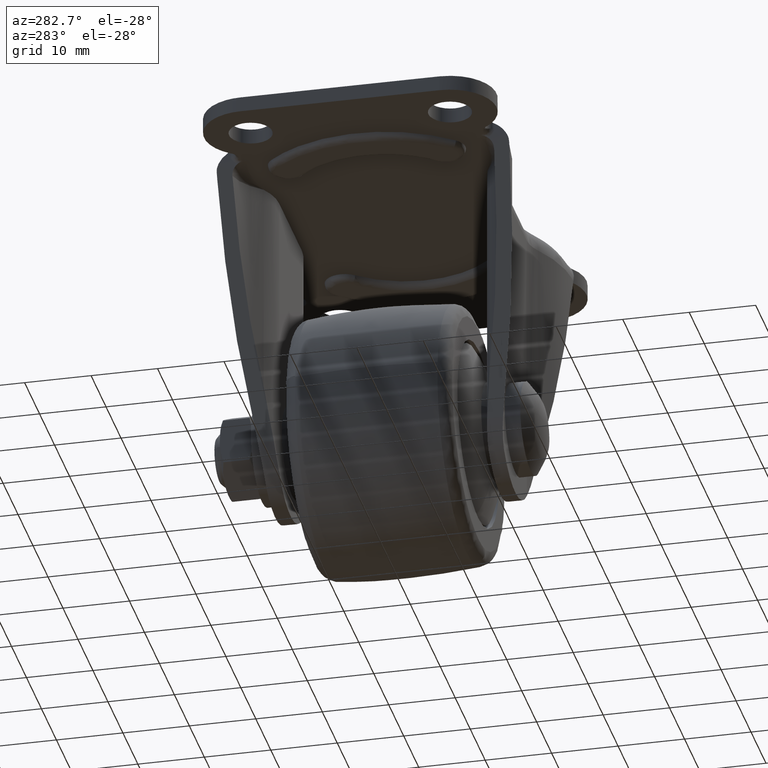
[diagram: clean part render]
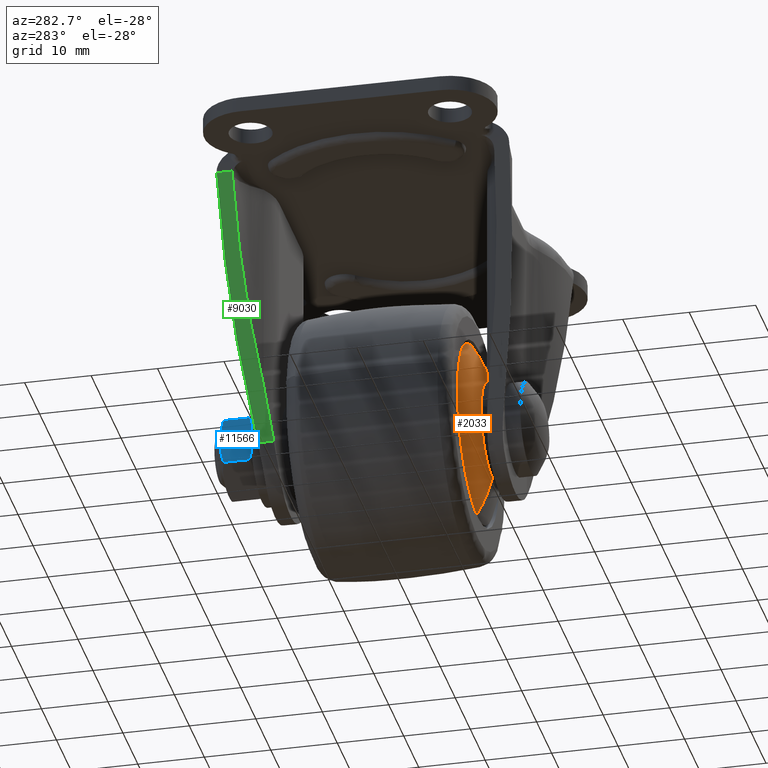
[diagram: same view with three faces highlighted in distinct colors, each labeled with its STEP entity id]
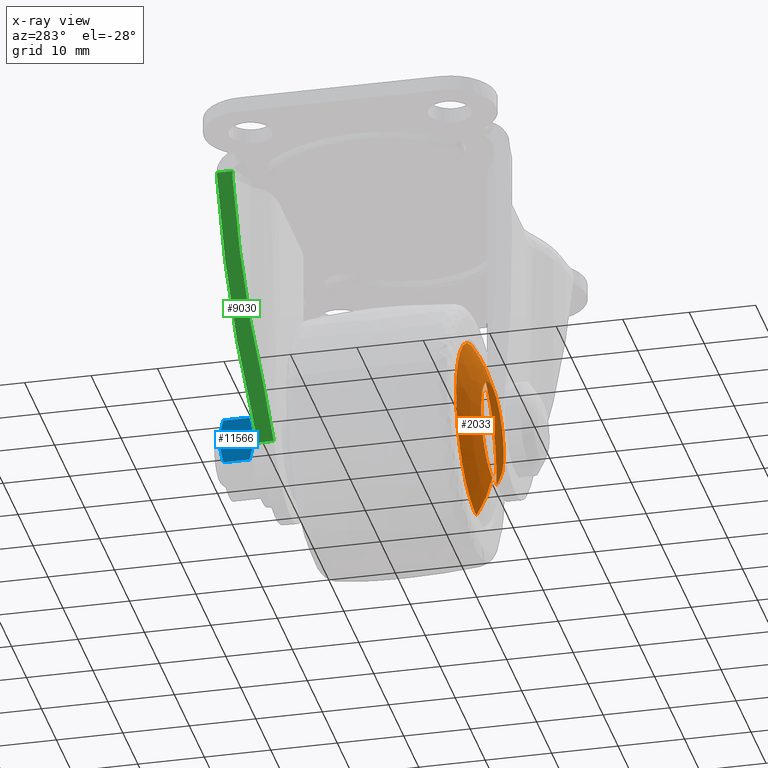
[diagram: x-ray of the same camera — body ghosted, the three highlighted faces saturated]
A machine part, auxiliary view with three faces highlighted in distinct colors.
The next image is the same camera in x-ray (body ghosted, the three faces saturated) — at least one of them is partly hidden behind the body in this view.
Their STEP definitions:

[orange] entity #2033 — the highlighted face is a freeform B-spline surface patch.
#696=CARTESIAN_POINT('',(-13.474820915861351,-12.182771163744279,-39.175864850305047));
#697=VERTEX_POINT('',#696);
#703=CARTESIAN_POINT('',(0.0,-12.182773047141520,-26.500000000000000));
#704=VERTEX_POINT('',#703);
#705=CARTESIAN_POINT('',(0.0,-12.182773047141520,-26.500000000000000));
#706=CARTESIAN_POINT('',(-12.699548009420326,-12.182773047141520,-26.500000000000004));
#707=CARTESIAN_POINT('',(-13.474820915861349,-12.182771163744279,-39.175864850305047));
#715=(BOUNDED_CURVE()B_SPLINE_CURVE(2,(#705,#706,#707),.UNSPECIFIED.,.F.,.U.)B_SPLINE_CURVE_WITH_KNOTS((3,3),(0.500000000000000,0.739333180666354),.UNSPECIFIED.)CURVE()GEOMETRIC_REPRESENTATION_ITEM()RATIONAL_B_SPLINE_CURVE((1.0,0.719603737383080,0.976072509798687))REPRESENTATION_ITEM(''));
#716=EDGE_CURVE('',#704,#697,#715,.T.);
#718=CARTESIAN_POINT('',(13.409675991670900,-12.182793590311441,-41.558743749918747));
#719=VERTEX_POINT('',#718);
#720=CARTESIAN_POINT('',(13.409675991670893,-12.182793590311446,-41.558743749918762));
#721=CARTESIAN_POINT('',(13.499967466808068,-12.182793060483601,-40.781985080643679));
#722=CARTESIAN_POINT('',(13.499968433996999,-12.182792465501009,-39.999996330760709));
#723=CARTESIAN_POINT('',(13.499985131230453,-12.182782193916047,-26.499998271650885));
#724=CARTESIAN_POINT('',(0.0,-12.182773047141520,-26.500000000000000));
#732=(BOUNDED_CURVE()B_SPLINE_CURVE(2,(#720,#721,#722,#723,#724),.UNSPECIFIED.,.F.,.U.)B_SPLINE_CURVE_WITH_KNOTS((3,2,3),(0.230000245529099,0.250000000000000,0.500000000000000),.UNSPECIFIED.)CURVE()GEOMETRIC_REPRESENTATION_ITEM()RATIONAL_B_SPLINE_CURVE((0.956886601452015,0.976568830150156,1.0,0.707106781186548,1.0))REPRESENTATION_ITEM(''));
#733=EDGE_CURVE('',#719,#704,#732,.T.);
#735=CARTESIAN_POINT('',(0.0,-12.182769035444821,-53.500006565186517));
#736=VERTEX_POINT('',#735);
#750=CARTESIAN_POINT('',(-4.746832036288619,-12.182769163538589,-52.637945479409240));
#751=VERTEX_POINT('',#750);
#752=CARTESIAN_POINT('',(-4.746832036288619,-12.182769163538596,-52.637945479409254));
#753=CARTESIAN_POINT('',(-2.451693907825490,-12.182769035448827,-53.500005172733715));
#754=CARTESIAN_POINT('',(0.0,-12.182769035444821,-53.500006565186517));
#762=(BOUNDED_CURVE()B_SPLINE_CURVE(2,(#752,#753,#754),.UNSPECIFIED.,.F.,.U.)B_SPLINE_CURVE_WITH_KNOTS((3,3),(0.940284290530248,1.0),.UNSPECIFIED.)CURVE()GEOMETRIC_REPRESENTATION_ITEM()RATIONAL_B_SPLINE_CURVE((0.893499701036261,0.930038694558702,1.0))REPRESENTATION_ITEM(''));
#763=EDGE_CURVE('',#751,#736,#762,.T.);
#807=CARTESIAN_POINT('',(-13.474820915861349,-12.182771163744279,-39.175864850305047));
#808=CARTESIAN_POINT('',(-13.500000070321578,-12.182771102575826,-39.587549367262376));
#809=CARTESIAN_POINT('',(-13.500000045732660,-12.182771041293060,-40.000003159436758));
#810=CARTESIAN_POINT('',(-13.499999488307314,-12.182769652026264,-49.350241180772038));
#811=CARTESIAN_POINT('',(-4.746832036288619,-12.182769163538596,-52.637945479409254));
#819=(BOUNDED_CURVE()B_SPLINE_CURVE(2,(#807,#808,#809,#810,#811),.UNSPECIFIED.,.F.,.U.)B_SPLINE_CURVE_WITH_KNOTS((3,2,3),(0.739333180666354,0.750000000000000,0.940284290530248),.UNSPECIFIED.)CURVE()GEOMETRIC_REPRESENTATION_ITEM()RATIONAL_B_SPLINE_CURVE((0.976072509798687,0.987503043803468,1.0,0.777068086627846,0.893499701036261))REPRESENTATION_ITEM(''));
#820=EDGE_CURVE('',#697,#751,#819,.T.);
#840=CARTESIAN_POINT('',(-7.485935557275999,-14.618241047723730,-39.410844094238200));
#841=VERTEX_POINT('',#840);
#842=CARTESIAN_POINT('',(-2.762609031767161,-14.618241961957260,-46.982427914256448));
#843=VERTEX_POINT('',#842);
#844=CARTESIAN_POINT('',(-7.485935557275999,-14.618241047723734,-39.410844094238193));
#845=CARTESIAN_POINT('',(-7.509083458400205,-14.618241076282951,-39.704966576889916));
#846=CARTESIAN_POINT('',(-7.509083470475787,-14.618241105712009,-39.999998541450672));
#847=CARTESIAN_POINT('',(-7.509083679400792,-14.618241614877201,-45.104478166267398));
#848=CARTESIAN_POINT('',(-2.762609031767160,-14.618241961957267,-46.982427914256448));
#856=(BOUNDED_CURVE()B_SPLINE_CURVE(2,(#844,#845,#846,#847,#848),.UNSPECIFIED.,.F.,.U.)B_SPLINE_CURVE_WITH_KNOTS((3,2,3),(0.736331332318104,0.750000000000000,0.937532572423875),.UNSPECIFIED.)CURVE()GEOMETRIC_REPRESENTATION_ITEM()RATIONAL_B_SPLINE_CURVE((0.969723422296706,0.983986159703032,1.0,0.780291924921617,0.890203213857211))REPRESENTATION_ITEM(''));
#857=EDGE_CURVE('',#841,#843,#856,.T.);
#917=CARTESIAN_POINT('',(0.0,-14.618241481884580,-47.509080533641637));
#918=VERTEX_POINT('',#917);
#919=CARTESIAN_POINT('',(-2.762609031767160,-14.618241961957267,-46.982427914256448));
#920=CARTESIAN_POINT('',(-1.431504160055830,-14.618241733979769,-47.509080939676132));
#921=CARTESIAN_POINT('',(0.0,-14.618241481884580,-47.509080533641637));
#929=(BOUNDED_CURVE()B_SPLINE_CURVE(2,(#919,#920,#921),.UNSPECIFIED.,.F.,.U.)B_SPLINE_CURVE_WITH_KNOTS((3,3),(0.937532572423875,1.0),.UNSPECIFIED.)CURVE()GEOMETRIC_REPRESENTATION_ITEM()RATIONAL_B_SPLINE_CURVE((0.890203213857211,0.926814856264931,1.0))REPRESENTATION_ITEM(''));
#930=EDGE_CURVE('',#843,#918,#929,.T.);
#932=CARTESIAN_POINT('',(7.458860093009480,-14.618240794113630,-40.867030546176750));
#933=VERTEX_POINT('',#932);
#947=CARTESIAN_POINT('',(0.0,-14.618240794139419,-32.490916443840163));
#948=VERTEX_POINT('',#947);
#949=CARTESIAN_POINT('',(7.458860093009480,-14.618240794113630,-40.867030546176750));
#950=CARTESIAN_POINT('',(7.509083556159850,-14.618240794139416,-40.434969891158879));
#951=CARTESIAN_POINT('',(7.509083556159850,-14.618240794139419,-40.0));
#952=CARTESIAN_POINT('',(7.509083556159848,-14.618240794139426,-32.490916443840149));
#953=CARTESIAN_POINT('',(0.0,-14.618240794139419,-32.490916443840163));
#961=(BOUNDED_CURVE()B_SPLINE_CURVE(2,(#949,#950,#951,#952,#953),.UNSPECIFIED.,.F.,.U.)B_SPLINE_CURVE_WITH_KNOTS((3,2,3),(0.229999999981900,0.250000000000000,0.500000000000000),.UNSPECIFIED.)CURVE()GEOMETRIC_REPRESENTATION_ITEM()RATIONAL_B_SPLINE_CURVE((0.956886118155034,0.976568542473718,1.0,0.707106781186548,1.0))REPRESENTATION_ITEM(''));
#962=EDGE_CURVE('',#933,#948,#961,.T.);
#964=CARTESIAN_POINT('',(0.0,-14.618240794139419,-32.490916443840163));
#965=CARTESIAN_POINT('',(-6.941326727352064,-14.618240794139426,-32.490916443840156));
#966=CARTESIAN_POINT('',(-7.485935557275999,-14.618241047723727,-39.410844094238200));
#974=(BOUNDED_CURVE()B_SPLINE_CURVE(2,(#964,#965,#966),.UNSPECIFIED.,.F.,.U.)B_SPLINE_CURVE_WITH_KNOTS((3,3),(0.500000000000000,0.736331332318103),.UNSPECIFIED.)CURVE()GEOMETRIC_REPRESENTATION_ITEM()RATIONAL_B_SPLINE_CURVE((1.0,0.723120621483517,0.969723422296704))REPRESENTATION_ITEM(''));
#975=EDGE_CURVE('',#948,#841,#974,.T.);
#1962=CARTESIAN_POINT('',(7.146563714614486,-14.687123446489121,-40.830728506506148));
#1963=CARTESIAN_POINT('',(10.654441419993942,-13.943125665402611,-41.238490071863318));
#1964=CARTESIAN_POINT('',(13.682769570056870,-12.011721982796681,-41.590507995689819));
#1965=CARTESIAN_POINT('',(7.194684341829480,-14.687123446489128,-40.416757966569421));
#1966=CARTESIAN_POINT('',(10.726181968910771,-13.943125665402610,-40.621322850875785));
#1967=CARTESIAN_POINT('',(13.774901044712715,-12.011721982796667,-40.797922393302628));
#1968=CARTESIAN_POINT('',(7.194684341829480,-14.687123446489117,-40.0));
#1969=CARTESIAN_POINT('',(10.726181968910771,-13.943125665402617,-40.000000000000007));
#1970=CARTESIAN_POINT('',(13.774901044712715,-12.011721982796674,-40.0));
#1971=CARTESIAN_POINT('',(7.194684341829492,-14.687123446489121,-32.805315658170528));
#1972=CARTESIAN_POINT('',(10.726181968910780,-13.943125665402611,-29.273818031089238));
#1973=CARTESIAN_POINT('',(13.774901044712715,-12.011721982796669,-26.225098955287301));
#1974=CARTESIAN_POINT('',(0.0,-14.687123446489117,-32.805315658170521));
#1975=CARTESIAN_POINT('',(0.0,-13.943125665402617,-29.273818031089231));
#1976=CARTESIAN_POINT('',(0.0,-12.011721982796674,-26.225098955287283));
#1977=CARTESIAN_POINT('',(-7.194684341829481,-14.687123446489121,-32.805315658170528));
#1978=CARTESIAN_POINT('',(-10.726181968910772,-13.943125665402611,-29.273818031089238));
#1979=CARTESIAN_POINT('',(-13.774901044712712,-12.011721982796669,-26.225098955287301));
#1980=CARTESIAN_POINT('',(-7.194684341829480,-14.687123446489117,-40.0));
#1981=CARTESIAN_POINT('',(-10.726181968910771,-13.943125665402617,-40.000000000000007));
#1982=CARTESIAN_POINT('',(-13.774901044712715,-12.011721982796674,-40.0));
#1983=CARTESIAN_POINT('',(-7.194684341829492,-14.687123446489121,-47.194684341829493));
#1984=CARTESIAN_POINT('',(-10.726181968910780,-13.943125665402611,-50.726181968910780));
#1985=CARTESIAN_POINT('',(-13.774901044712715,-12.011721982796669,-53.774901044712706));
#1986=CARTESIAN_POINT('',(0.0,-14.687123446489117,-47.194684341829479));
#1987=CARTESIAN_POINT('',(0.0,-13.943125665402617,-50.726181968910765));
#1988=CARTESIAN_POINT('',(0.0,-12.011721982796674,-53.774901044712720));
#1996=(BOUNDED_SURFACE()B_SPLINE_SURFACE(2,2,((#1962,#1965,#1968,#1971,#1974,#1977,#1980,#1983,#1986),(#1963,#1966,#1969,#1972,#1975,#1978,#1981,#1984,#1987),(#1964,#1967,#1970,#1973,#1976,#1979,#1982,#1985,#1988)),.UNSPECIFIED.,.F.,.F.,.U.)B_SPLINE_SURFACE_WITH_KNOTS((3,3),(3,2,2,2,3),(0.0,7.160196184574903),(0.0,1.825839885681582,24.648843217950880,47.471846550220171,70.294849882489473),.UNSPECIFIED.)GEOMETRIC_REPRESENTATION_ITEM()RATIONAL_B_SPLINE_SURFACE(((0.890021714400608,0.908328785201493,0.930122916241287,0.657696221411221,0.930122916241287,0.657696221411221,0.930122916241287,0.657696221411221,0.930122916241287),(0.873164444060380,0.891124773611434,0.912506117465451,0.645239263534028,0.912506117465451,0.645239263534028,0.912506117465451,0.645239263534028,0.912506117465451),(0.884520371814718,0.902714284176218,0.924373702793527,0.653630913595821,0.924373702793527,0.653630913595821,0.924373702793527,0.653630913595821,0.924373702793527)))REPRESENTATION_ITEM('')SURFACE());
#1997=ORIENTED_EDGE('',*,*,#733,.T.);
#1998=ORIENTED_EDGE('',*,*,#716,.T.);
#1999=ORIENTED_EDGE('',*,*,#820,.T.);
#2000=ORIENTED_EDGE('',*,*,#763,.T.);
#2001=CARTESIAN_POINT('',(0.0,-14.618241481884585,-47.509080533641630));
#2002=CARTESIAN_POINT('',(0.0,-13.891256796567301,-50.704047239213679));
#2003=CARTESIAN_POINT('',(0.0,-12.182769035444823,-53.500006565186524));
#2011=(BOUNDED_CURVE()B_SPLINE_CURVE(2,(#2001,#2002,#2003),.UNSPECIFIED.,.F.,.U.)B_SPLINE_CURVE_WITH_KNOTS((3,3),(0.110946488871639,0.202706852760419),.UNSPECIFIED.)CURVE()GEOMETRIC_REPRESENTATION_ITEM()RATIONAL_B_SPLINE_CURVE((0.928583646167967,0.913784296243747,0.923356615400687))REPRESENTATION_ITEM(''));
#2012=EDGE_CURVE('',#918,#736,#2011,.T.);
#2013=ORIENTED_EDGE('',*,*,#2012,.F.);
#2014=ORIENTED_EDGE('',*,*,#930,.F.);
#2015=ORIENTED_EDGE('',*,*,#857,.F.);
#2016=ORIENTED_EDGE('',*,*,#975,.F.);
#2017=ORIENTED_EDGE('',*,*,#962,.F.);
#2018=CARTESIAN_POINT('',(7.458860093009480,-14.618240794113625,-40.867030546176750));
#2019=CARTESIAN_POINT('',(10.632433766906734,-13.891261331126861,-41.235922267916180));
#2020=CARTESIAN_POINT('',(13.409675991670891,-12.182793590311441,-41.558743749918754));
#2028=(BOUNDED_CURVE()B_SPLINE_CURVE(2,(#2018,#2019,#2020),.UNSPECIFIED.,.F.,.U.)B_SPLINE_CURVE_WITH_KNOTS((3,3),(0.110946532981696,0.202706186447544),.UNSPECIFIED.)CURVE()GEOMETRIC_REPRESENTATION_ITEM()RATIONAL_B_SPLINE_CURVE((0.888548786982071,0.874387615330748,0.883546994393507))REPRESENTATION_ITEM(''));
#2029=EDGE_CURVE('',#933,#719,#2028,.T.);
#2030=ORIENTED_EDGE('',*,*,#2029,.T.);
#2031=EDGE_LOOP('',(#1997,#1998,#1999,#2000,#2013,#2014,#2015,#2016,#2017,#2030));
#2032=FACE_OUTER_BOUND('',#2031,.T.);
#2033=ADVANCED_FACE('',(#2032),#1996,.T.);

[blue] entity #11566 — the highlighted face is a freeform B-spline surface patch.
#11079=CARTESIAN_POINT('',(-6.000000000000110,24.514101755950449,-36.535897999999897));
#11080=VERTEX_POINT('',#11079);
#11081=CARTESIAN_POINT('',(-6.000000000000110,25.050000000000001,-40.0));
#11082=VERTEX_POINT('',#11081);
#11083=CARTESIAN_POINT('',(-6.000000000000110,24.514101755950449,-36.535897999999897));
#11084=CARTESIAN_POINT('',(-6.000000000000112,24.675771102702289,-37.095937261797268));
#11085=CARTESIAN_POINT('',(-6.000000000000112,24.810347986418019,-37.663130441609923));
#11086=CARTESIAN_POINT('',(-6.000000000000111,24.951149997300480,-38.530044324757043));
#11087=CARTESIAN_POINT('',(-6.000000000000108,24.987853493681580,-38.821717042409702));
#11088=CARTESIAN_POINT('',(-6.000000000000111,25.025046730624929,-39.263942682974857));
#11089=CARTESIAN_POINT('',(-6.000000000000112,25.034400434183269,-39.411386436511400));
#11090=CARTESIAN_POINT('',(-6.000000000000110,25.046862420935330,-39.705470259671117));
#11091=CARTESIAN_POINT('',(-6.000000000000109,25.049982518698009,-39.852249000437411));
#11092=CARTESIAN_POINT('',(-6.000000000000109,25.049999975549849,-39.999176845019932));
#11093=CARTESIAN_POINT('',(-6.000000000000109,25.049999999879638,-39.999588423389163));
#11094=CARTESIAN_POINT('',(-6.000000000000110,25.050000000000001,-40.0));
#11095=B_SPLINE_CURVE_WITH_KNOTS('',3,(#11083,#11084,#11085,#11086,#11087,#11088,#11089,#11090,#11091,#11092,#11093,#11094),.UNSPECIFIED.,.F.,.U.,(4,2,2,2,2,4),(0.499824430563090,0.749824430563098,0.874824430563101,0.937324430563101,0.999824430563101,1.0),.UNSPECIFIED.);
#11096=EDGE_CURVE('',#11080,#11082,#11095,.T.);
#11325=CARTESIAN_POINT('',(-6.000000000000110,24.514101755950449,-43.464101999999997));
#11326=VERTEX_POINT('',#11325);
#11340=CARTESIAN_POINT('',(-6.000000000000110,25.050000000000001,-40.0));
#11341=CARTESIAN_POINT('',(-6.000000000000111,25.049999829340209,-40.292617992135121));
#11342=CARTESIAN_POINT('',(-6.000000000000111,25.037580440226229,-40.584185362104648));
#11343=CARTESIAN_POINT('',(-6.000000000000108,24.989141510498300,-41.165735188751263));
#11344=CARTESIAN_POINT('',(-6.000000000000110,24.953106715078029,-41.455716354925471));
#11345=CARTESIAN_POINT('',(-6.000000000000112,24.859896164030840,-42.033890236490421));
#11346=CARTESIAN_POINT('',(-6.000000000000110,24.802740688216229,-42.322084667481853));
#11347=CARTESIAN_POINT('',(-6.000000000000112,24.703462752031619,-42.753230478147778));
#11348=CARTESIAN_POINT('',(-6.000000000000110,24.668151841028600,-42.896572927524453));
#11349=CARTESIAN_POINT('',(-6.000000000000110,24.593846458290880,-43.181406625303232));
#11350=CARTESIAN_POINT('',(-6.000000000000112,24.554810396634721,-43.323083077515953));
#11351=CARTESIAN_POINT('',(-6.000000000000110,24.514101755950321,-43.464101999999947));
#11352=B_SPLINE_CURVE_WITH_KNOTS('',3,(#11340,#11341,#11342,#11343,#11344,#11345,#11346,#11347,#11348,#11349,#11350,#11351),.UNSPECIFIED.,.F.,.U.,(4,2,2,2,2,4),(0.0,0.124824430519084,0.249824430519080,0.374824430519077,0.437324430519077,0.499824430519076),.UNSPECIFIED.);
#11353=EDGE_CURVE('',#11082,#11326,#11352,.T.);
#11472=CARTESIAN_POINT('',(-6.000000000000110,20.585898244049851,-36.535897999999897));
#11473=VERTEX_POINT('',#11472);
#11474=CARTESIAN_POINT('',(-6.000000000000110,24.514101755950449,-36.535897999999897));
#11475=CARTESIAN_POINT('',(-6.000000000000110,20.585898244049851,-36.535897999999897));
#11476=QUASI_UNIFORM_CURVE('',1,(#11474,#11475),.UNSPECIFIED.,.F.,.U.);
#11477=EDGE_CURVE('',#11080,#11473,#11476,.T.);
#11517=CARTESIAN_POINT('',(-6.000000000000110,19.800249247498812,-43.810167671665660));
#11518=CARTESIAN_POINT('',(-6.000000000000110,19.800249247498812,-36.189832390277232));
#11519=CARTESIAN_POINT('',(-6.000000000000110,25.299749411396679,-43.810167671665660));
#11520=CARTESIAN_POINT('',(-6.000000000000110,25.299749411396679,-36.189832390277232));
#11521=B_SPLINE_SURFACE_WITH_KNOTS('',1,1,((#11517,#11519),(#11518,#11520)),.UNSPECIFIED.,.F.,.F.,.U.,(2,2),(2,2),(0.0,7.620335281388436),(0.0,5.499500163897874),.UNSPECIFIED.);
#11522=ORIENTED_EDGE('',*,*,#11096,.T.);
#11523=ORIENTED_EDGE('',*,*,#11353,.T.);
#11524=CARTESIAN_POINT('',(-6.000000000000110,20.585898244049851,-43.464101999999997));
#11525=VERTEX_POINT('',#11524);
#11526=CARTESIAN_POINT('',(-6.000000000000110,24.514101755950449,-43.464101999999997));
#11527=CARTESIAN_POINT('',(-6.000000000000110,20.585898244049851,-43.464101999999997));
#11528=QUASI_UNIFORM_CURVE('',1,(#11526,#11527),.UNSPECIFIED.,.F.,.U.);
#11529=EDGE_CURVE('',#11326,#11525,#11528,.T.);
#11530=ORIENTED_EDGE('',*,*,#11529,.T.);
#11531=CARTESIAN_POINT('',(-6.000000000000110,20.050000000000001,-40.0));
#11532=VERTEX_POINT('',#11531);
#11533=CARTESIAN_POINT('',(-6.000000000000110,20.585898244049812,-43.464102000000011));
#11534=CARTESIAN_POINT('',(-6.000000000000113,20.545189603365429,-43.323083077516003));
#11535=CARTESIAN_POINT('',(-6.000000000000110,20.506153541709249,-43.181406625303303));
#11536=CARTESIAN_POINT('',(-6.000000000000108,20.431848158971540,-42.896572927524502));
#11537=CARTESIAN_POINT('',(-6.000000000000111,20.396537247968531,-42.753230478147771));
#11538=CARTESIAN_POINT('',(-6.000000000000111,20.297259311783911,-42.322084667481860));
#11539=CARTESIAN_POINT('',(-6.000000000000109,20.240103835969322,-42.033890236490429));
#11540=CARTESIAN_POINT('',(-6.000000000000110,20.146893284922140,-41.455716354925478));
#11541=CARTESIAN_POINT('',(-6.000000000000109,20.110858489501879,-41.165735188751270));
#11542=CARTESIAN_POINT('',(-6.000000000000110,20.062419559773939,-40.584185362104641));
#11543=CARTESIAN_POINT('',(-6.000000000000112,20.050000170659970,-40.292617992135142));
#11544=CARTESIAN_POINT('',(-6.000000000000110,20.050000000000001,-40.0));
#11545=B_SPLINE_CURVE_WITH_KNOTS('',3,(#11533,#11534,#11535,#11536,#11537,#11538,#11539,#11540,#11541,#11542,#11543,#11544),.UNSPECIFIED.,.F.,.U.,(4,2,2,2,2,4),(0.0,0.062500000000000,0.125000000000001,0.249999999999999,0.374999999999997,0.499824430519084),.UNSPECIFIED.);
#11546=EDGE_CURVE('',#11525,#11532,#11545,.T.);
#11547=ORIENTED_EDGE('',*,*,#11546,.T.);
#11548=CARTESIAN_POINT('',(-6.000000000000110,20.050000000000001,-40.0));
#11549=CARTESIAN_POINT('',(-6.000000000000113,20.050000000120541,-39.999588423389170));
#11550=CARTESIAN_POINT('',(-6.000000000000113,20.050000024450330,-39.999176845019953));
#11551=CARTESIAN_POINT('',(-6.000000000000112,20.050017481302159,-39.852249000437432));
#11552=CARTESIAN_POINT('',(-6.000000000000111,20.053137579064838,-39.705470259671152));
#11553=CARTESIAN_POINT('',(-6.000000000000109,20.065599565816921,-39.411386436511407));
#11554=CARTESIAN_POINT('',(-6.000000000000109,20.074953269375250,-39.263942682974807));
#11555=CARTESIAN_POINT('',(-6.000000000000111,20.112146506318592,-38.821717042409652));
#11556=CARTESIAN_POINT('',(-6.000000000000110,20.148850002699700,-38.530044324756993));
#11557=CARTESIAN_POINT('',(-6.000000000000111,20.289652013582149,-37.663130441609859));
#11558=CARTESIAN_POINT('',(-6.000000000000112,20.424228897297859,-37.095937261797211));
#11559=CARTESIAN_POINT('',(-6.000000000000110,20.585898244049851,-36.535897999999897));
#11560=B_SPLINE_CURVE_WITH_KNOTS('',3,(#11548,#11549,#11550,#11551,#11552,#11553,#11554,#11555,#11556,#11557,#11558,#11559),.UNSPECIFIED.,.F.,.U.,(4,2,2,2,2,4),(0.499824430563098,0.499999999999996,0.562499999999995,0.624999999999994,0.749999999999995,1.0),.UNSPECIFIED.);
#11561=EDGE_CURVE('',#11532,#11473,#11560,.T.);
#11562=ORIENTED_EDGE('',*,*,#11561,.T.);
#11563=ORIENTED_EDGE('',*,*,#11477,.F.);
#11564=EDGE_LOOP('',(#11522,#11523,#11530,#11547,#11562,#11563));
#11565=FACE_OUTER_BOUND('',#11564,.T.);
#11566=ADVANCED_FACE('',(#11565),#11521,.T.);

[green] entity #9030 — the highlighted face is a freeform B-spline surface patch.
#5505=CARTESIAN_POINT('',(-21.346260549676401,21.989972251940149,-4.499999999999945));
#5506=VERTEX_POINT('',#5505);
#5520=CARTESIAN_POINT('',(-21.585738425470250,21.995973323452802,-3.694095333916275));
#5521=VERTEX_POINT('',#5520);
#5522=CARTESIAN_POINT('',(-21.585738425470250,21.995973323452802,-3.694095333916275));
#5523=CARTESIAN_POINT('',(-21.465982627636777,21.993645597845976,-4.097104404982003));
#5524=CARTESIAN_POINT('',(-21.346260549676401,21.989972251940149,-4.499999999999945));
#5532=(BOUNDED_CURVE()B_SPLINE_CURVE(2,(#5522,#5523,#5524),.UNSPECIFIED.,.F.,.U.)CURVE()GEOMETRIC_REPRESENTATION_ITEM()QUASI_UNIFORM_CURVE()RATIONAL_B_SPLINE_CURVE((1.0,0.999984213937059,1.0))REPRESENTATION_ITEM(''));
#5533=EDGE_CURVE('',#5521,#5506,#5532,.T.);
#7083=CARTESIAN_POINT('',(-21.379621236370749,19.689877085946801,-4.387732706073065));
#7084=VERTEX_POINT('',#7083);
#7085=CARTESIAN_POINT('',(-21.585738425470200,19.563380423333051,-3.694095333916265));
#7086=VERTEX_POINT('',#7085);
#7087=CARTESIAN_POINT('',(-21.379621236370749,19.689877085946801,-4.387732706073065));
#7088=CARTESIAN_POINT('',(-21.484811704320411,19.693190260867709,-4.033739717505080));
#7089=CARTESIAN_POINT('',(-21.585738425470200,19.563380423333051,-3.694095333916265));
#7090=QUASI_UNIFORM_CURVE('',2,(#7087,#7088,#7089),.UNSPECIFIED.,.F.,.U.);
#7091=EDGE_CURVE('',#7084,#7086,#7090,.T.);
#7252=CARTESIAN_POINT('',(-21.585738425470200,19.563380423333051,-3.694095333916265));
#7253=CARTESIAN_POINT('',(-21.585738425470250,21.995973323452802,-3.694095333916275));
#7254=QUASI_UNIFORM_CURVE('',1,(#7252,#7253),.UNSPECIFIED.,.F.,.U.);
#7255=EDGE_CURVE('',#7086,#5521,#7254,.T.);
#8886=CARTESIAN_POINT('',(-9.921239270361500,16.047196307249148,-42.948136090164454));
#8887=VERTEX_POINT('',#8886);
#8903=CARTESIAN_POINT('',(-9.921239270361500,18.451545292020700,-42.948136090164454));
#8904=VERTEX_POINT('',#8903);
#8905=CARTESIAN_POINT('',(-9.921239270361500,18.451545292020700,-42.948136090164454));
#8906=CARTESIAN_POINT('',(-9.921239270361500,16.047196307249148,-42.948136090164454));
#8907=QUASI_UNIFORM_CURVE('',1,(#8905,#8906),.UNSPECIFIED.,.F.,.U.);
#8908=EDGE_CURVE('',#8904,#8887,#8907,.T.);
#8963=CARTESIAN_POINT('',(-9.338597669669849,15.750053957491000,-44.908874981368257));
#8964=CARTESIAN_POINT('',(-22.168380443316838,15.750053957491000,-1.733355038878573));
#8965=CARTESIAN_POINT('',(-9.338597669669849,22.293114928603991,-44.908874981368257));
#8966=CARTESIAN_POINT('',(-22.168380443316838,22.293114928603991,-1.733355038878573));
#8967=B_SPLINE_SURFACE_WITH_KNOTS('',1,1,((#8963,#8965),(#8964,#8966)),.UNSPECIFIED.,.F.,.F.,.U.,(2,2),(2,2),(0.0,45.041412592449781),(0.0,6.543060971112992),.UNSPECIFIED.);
#8968=CARTESIAN_POINT('',(-12.296251224728040,17.037886183437301,-34.955609809046798));
#8969=VERTEX_POINT('',#8968);
#8970=CARTESIAN_POINT('',(-21.379621236370749,19.689877085946801,-4.387732706073065));
#8971=CARTESIAN_POINT('',(-16.497323635417544,19.530518454328217,-20.817920274650188));
#8972=CARTESIAN_POINT('',(-12.296251224727969,17.037886183437319,-34.955609809046777));
#8980=(BOUNDED_CURVE()B_SPLINE_CURVE(2,(#8970,#8971,#8972),.UNSPECIFIED.,.F.,.U.)CURVE()GEOMETRIC_REPRESENTATION_ITEM()QUASI_UNIFORM_CURVE()RATIONAL_B_SPLINE_CURVE((1.0,0.968555913844915,1.0))REPRESENTATION_ITEM(''));
#8981=EDGE_CURVE('',#7084,#8969,#8980,.T.);
#8982=ORIENTED_EDGE('',*,*,#8981,.F.);
#8983=ORIENTED_EDGE('',*,*,#7091,.T.);
#8984=ORIENTED_EDGE('',*,*,#7255,.T.);
#8985=ORIENTED_EDGE('',*,*,#5533,.T.);
#8986=CARTESIAN_POINT('',(-11.122622904257780,19.015914637577950,-38.905171064255200));
#8987=VERTEX_POINT('',#8986);
#8988=CARTESIAN_POINT('',(-21.346260549676401,21.989972251940149,-4.499999999999945));
#8989=CARTESIAN_POINT('',(-15.850913442511160,21.821362492228079,-22.993256885351414));
#8990=CARTESIAN_POINT('',(-11.122622904257669,19.015914637577971,-38.905171064255192));
#8998=(BOUNDED_CURVE()B_SPLINE_CURVE(2,(#8988,#8989,#8990),.UNSPECIFIED.,.F.,.U.)CURVE()GEOMETRIC_REPRESENTATION_ITEM()QUASI_UNIFORM_CURVE()RATIONAL_B_SPLINE_CURVE((1.0,0.968312146698991,1.0))REPRESENTATION_ITEM(''));
#8999=EDGE_CURVE('',#5506,#8987,#8998,.T.);
#9000=ORIENTED_EDGE('',*,*,#8999,.T.);
#9001=CARTESIAN_POINT('',(-9.921239270361475,18.451545292020679,-42.948136090164454));
#9002=CARTESIAN_POINT('',(-10.549199211578085,18.675683796131409,-40.834889323370199));
#9003=CARTESIAN_POINT('',(-11.122622904257719,19.015914637577929,-38.905171064255178));
#9011=(BOUNDED_CURVE()B_SPLINE_CURVE(2,(#9001,#9002,#9003),.UNSPECIFIED.,.F.,.U.)CURVE()GEOMETRIC_REPRESENTATION_ITEM()QUASI_UNIFORM_CURVE()RATIONAL_B_SPLINE_CURVE((1.0,0.995363554896754,1.0))REPRESENTATION_ITEM(''));
#9012=EDGE_CURVE('',#8904,#8987,#9011,.T.);
#9013=ORIENTED_EDGE('',*,*,#9012,.F.);
#9014=ORIENTED_EDGE('',*,*,#8908,.T.);
#9015=CARTESIAN_POINT('',(-9.921239270361484,16.047196307249120,-42.948136090164461));
#9016=CARTESIAN_POINT('',(-11.178709917240980,16.374812745329457,-38.716423835225946));
#9017=CARTESIAN_POINT('',(-12.296251224728030,17.037886183437269,-34.955609809046813));
#9025=(BOUNDED_CURVE()B_SPLINE_CURVE(2,(#9015,#9016,#9017),.UNSPECIFIED.,.F.,.U.)CURVE()GEOMETRIC_REPRESENTATION_ITEM()QUASI_UNIFORM_CURVE()RATIONAL_B_SPLINE_CURVE((1.0,0.990171829635123,1.0))REPRESENTATION_ITEM(''));
#9026=EDGE_CURVE('',#8887,#8969,#9025,.T.);
#9027=ORIENTED_EDGE('',*,*,#9026,.T.);
#9028=EDGE_LOOP('',(#8982,#8983,#8984,#8985,#9000,#9013,#9014,#9027));
#9029=FACE_OUTER_BOUND('',#9028,.T.);
#9030=ADVANCED_FACE('',(#9029),#8967,.T.);